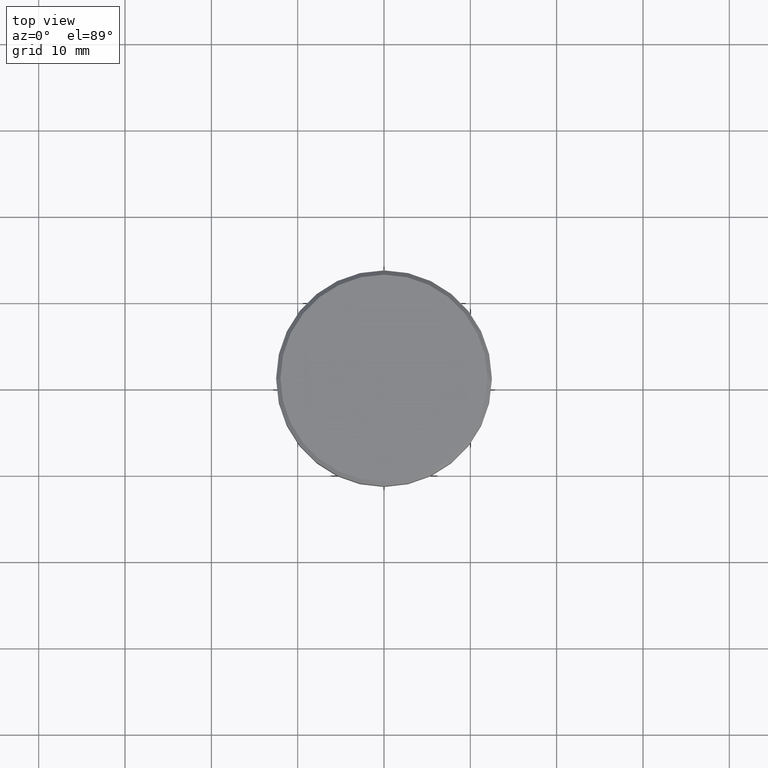
[diagram: clean part render]
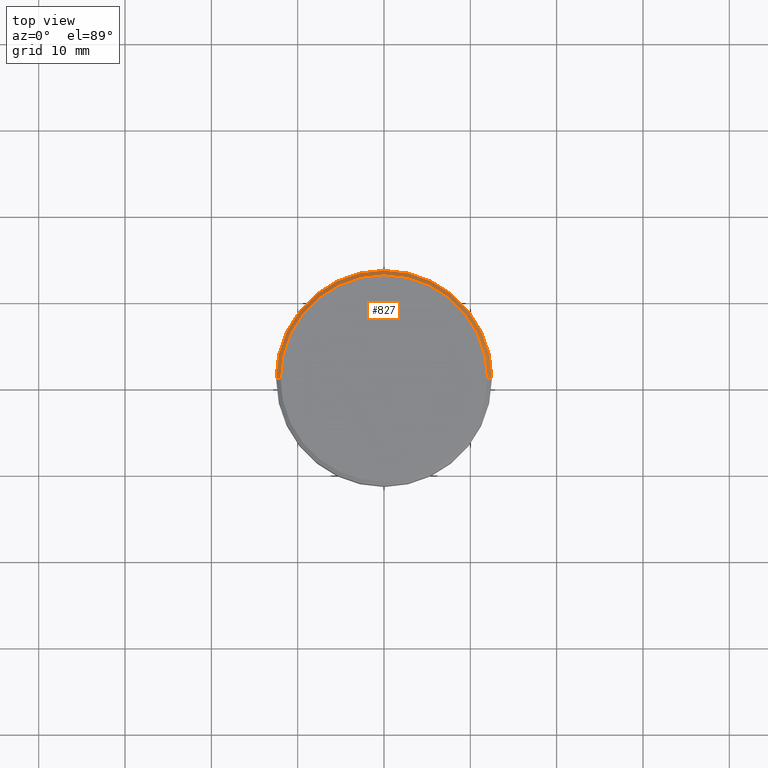
[diagram: same view with one face highlighted and labeled with its STEP entity id]
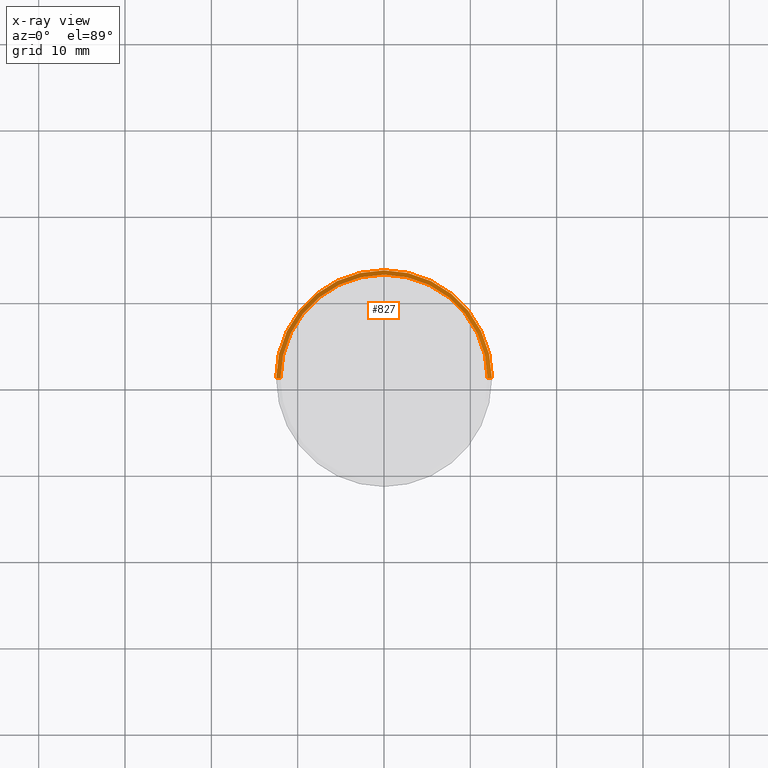
[diagram: x-ray of the same camera — body ghosted, the highlighted face saturated]
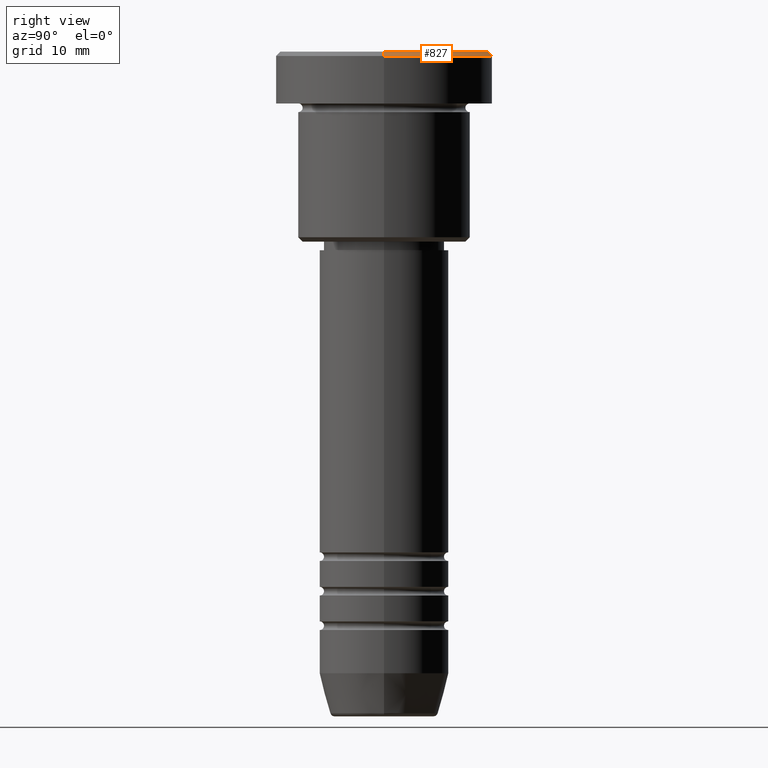
[diagram: same view with one face highlighted and labeled with its STEP entity id]
A machine part, top view. The second image highlights one B-rep face of the part: STEP entity #827.
The next image is the same camera in x-ray: the body ghosted, the highlighted face saturated — about 0% of this face is hidden behind the body in this view.
A second angle (right view) of the same face is appended — the face is thin or edge-on in the first view.
In plain terms, the highlighted conical surface has half-angle 45 deg.
Its self-contained STEP definition (entity closure, byte-faithful):
#44 = ORIENTED_EDGE ( 'NONE', *, *, #624, .F. ) ;
#52 = VECTOR ( 'NONE', #629, 999.9999999999998863 ) ;
#86 = CARTESIAN_POINT ( 'NONE',  ( -12.00000000000000355, 0.000000000000000000, 0.000000000000000000 ) ) ;
#167 = EDGE_CURVE ( 'NONE', #428, #695, #1091, .T. ) ;
#195 = DIRECTION ( 'NONE',  ( -1.000000000000000000, 0.000000000000000000, 0.000000000000000000 ) ) ;
#196 = DIRECTION ( 'NONE',  ( -0.7071067811865462405, 0.000000000000000000, -0.7071067811865489050 ) ) ;
#208 = EDGE_CURVE ( 'NONE', #428, #740, #1082, .T. ) ;
#218 = CARTESIAN_POINT ( 'NONE',  ( 0.000000000000000000, 0.000000000000000000, 0.000000000000000000 ) ) ;
#239 = DIRECTION ( 'NONE',  ( 0.000000000000000000, 0.000000000000000000, -1.000000000000000000 ) ) ;
#273 = CONICAL_SURFACE ( 'NONE', #308, 12.00000000000000355, 0.7853981633974465026 ) ;
#292 = DIRECTION ( 'NONE',  ( 0.000000000000000000, 0.000000000000000000, -1.000000000000000000 ) ) ;
#308 = AXIS2_PLACEMENT_3D ( 'NONE', #218, #292, #195 ) ;
#382 = LINE ( 'NONE', #390, #1000 ) ;
#389 = FACE_OUTER_BOUND ( 'NONE', #744, .T. ) ;
#390 = CARTESIAN_POINT ( 'NONE',  ( -12.00000000000000355, 0.000000000000000000, 0.000000000000000000 ) ) ;
#428 = VERTEX_POINT ( 'NONE', #1113 ) ;
#510 = DIRECTION ( 'NONE',  ( 1.000000000000000000, 0.000000000000000000, 0.000000000000000000 ) ) ;
#556 = AXIS2_PLACEMENT_3D ( 'NONE', #609, #239, #976 ) ;
#564 = ORIENTED_EDGE ( 'NONE', *, *, #167, .F. ) ;
#592 = AXIS2_PLACEMENT_3D ( 'NONE', #894, #805, #510 ) ;
#602 = CARTESIAN_POINT ( 'NONE',  ( -12.50000000000000000, 1.530808498934191521E-15, -0.4999999999999988343 ) ) ;
#609 = CARTESIAN_POINT ( 'NONE',  ( 0.000000000000000000, 0.000000000000000000, -0.4999999999999988343 ) ) ;
#624 = EDGE_CURVE ( 'NONE', #1038, #740, #713, .T. ) ;
#629 = DIRECTION ( 'NONE',  ( 0.7071067811865462405, 8.659560562354918067E-17, -0.7071067811865489050 ) ) ;
#695 = VERTEX_POINT ( 'NONE', #86 ) ;
#699 = ORIENTED_EDGE ( 'NONE', *, *, #208, .T. ) ;
#713 = CIRCLE ( 'NONE', #556, 12.50000000000000000 ) ;
#740 = VERTEX_POINT ( 'NONE', #995 ) ;
#744 = EDGE_LOOP ( 'NONE', ( #564, #699, #44, #1116 ) ) ;
#805 = DIRECTION ( 'NONE',  ( -0.000000000000000000, -0.000000000000000000, 1.000000000000000000 ) ) ;
#827 = ADVANCED_FACE ( 'NONE', ( #389 ), #273, .T. ) ;
#894 = CARTESIAN_POINT ( 'NONE',  ( 0.000000000000000000, 0.000000000000000000, 0.000000000000000000 ) ) ;
#976 = DIRECTION ( 'NONE',  ( 1.000000000000000000, 0.000000000000000000, 0.000000000000000000 ) ) ;
#995 = CARTESIAN_POINT ( 'NONE',  ( 12.50000000000000000, 0.000000000000000000, -0.4999999999999988343 ) ) ;
#1000 = VECTOR ( 'NONE', #196, 999.9999999999998863 ) ;
#1038 = VERTEX_POINT ( 'NONE', #602 ) ;
#1082 = LINE ( 'NONE', #1170, #52 ) ;
#1091 = CIRCLE ( 'NONE', #592, 12.00000000000000355 ) ;
#1113 = CARTESIAN_POINT ( 'NONE',  ( 12.00000000000000355, 1.500192328955507734E-15, 0.000000000000000000 ) ) ;
#1116 = ORIENTED_EDGE ( 'NONE', *, *, #1166, .F. ) ;
#1166 = EDGE_CURVE ( 'NONE', #695, #1038, #382, .T. ) ;
#1170 = CARTESIAN_POINT ( 'NONE',  ( 12.00000000000000355, 1.469576158976824342E-15, 0.000000000000000000 ) ) ;